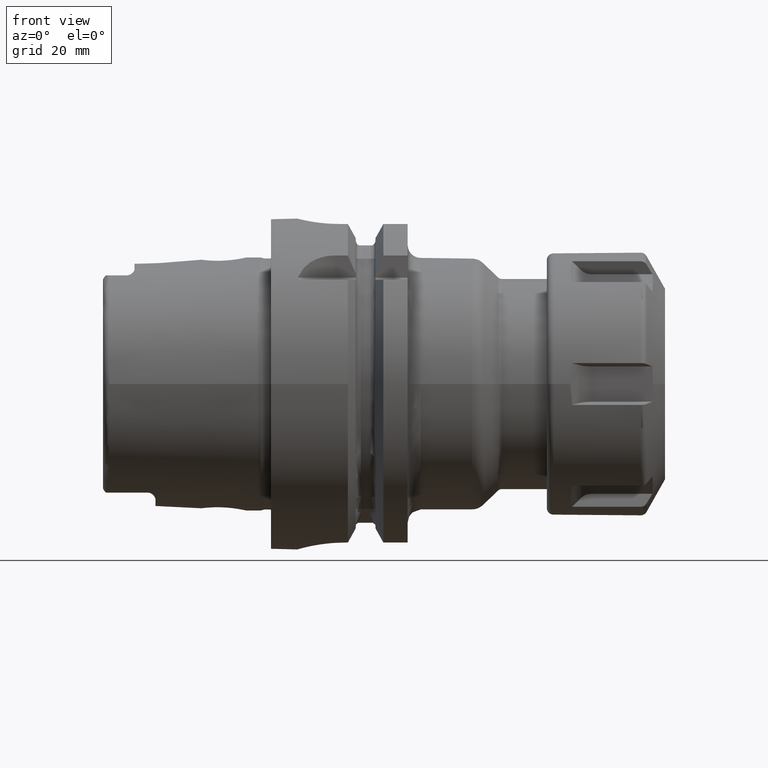
[diagram: clean part render]
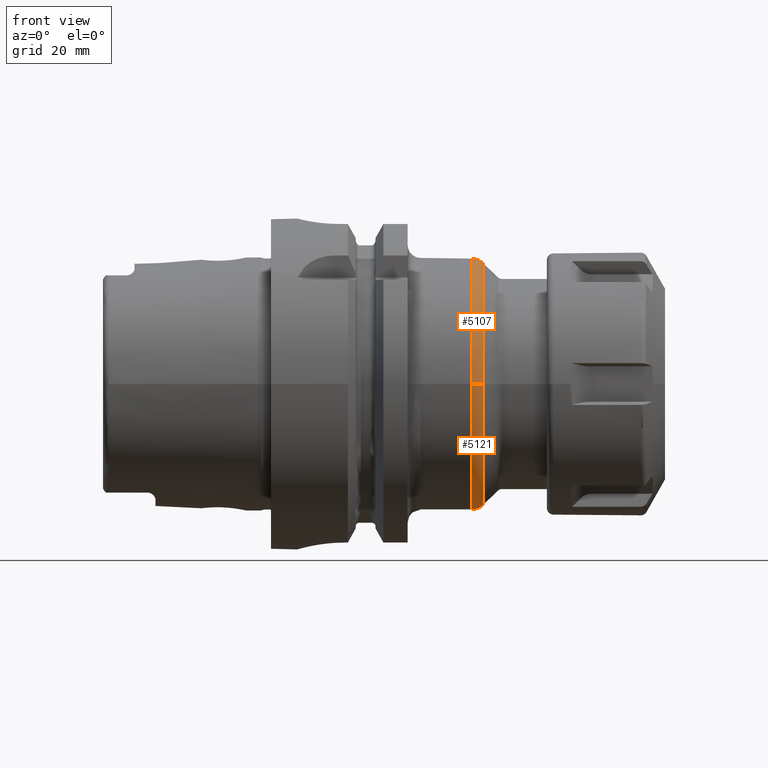
[diagram: same view with one multi-face feature highlighted, each face labeled with its STEP entity id]
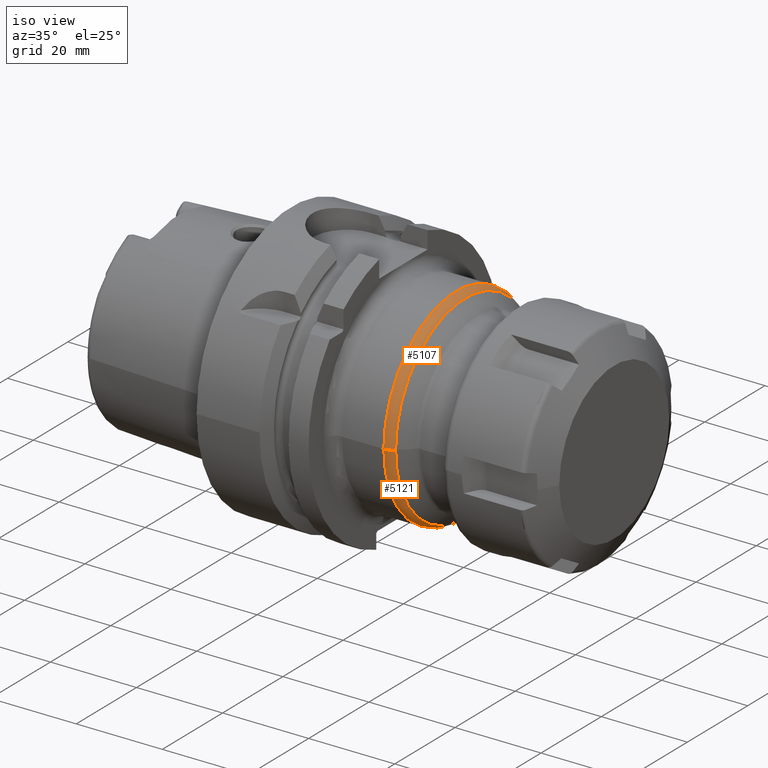
[diagram: same view with one multi-face feature highlighted, each face labeled with its STEP entity id]
A machine part, front view. The highlighted faces form ONE feature: a constant-radius fillet chain: 2 tangent blend faces with common blend radius 3 mm. The faces share edges in the B-rep.
A second angle (iso view) of the same feature is appended — it is thin or edge-on in the first view.
Their STEP definitions:
[1] entity #5107 (Torus):
#1824=CARTESIAN_POINT('',(3.825735931288E1,0.E0,0.E0));
#1825=DIRECTION('',(-1.E0,0.E0,0.E0));
#1826=DIRECTION('',(0.E0,-1.E0,0.E0));
#1827=AXIS2_PLACEMENT_3D('',#1824,#1825,#1826);
#1839=CARTESIAN_POINT('',(3.825735931288E1,-2.1E1,-4.103231643349E-12));
#1840=DIRECTION('',(0.E0,-1.953918797593E-13,1.E0));
#1841=DIRECTION('',(0.E0,-1.E0,-1.953918797593E-13));
#1842=AXIS2_PLACEMENT_3D('',#1839,#1840,#1841);
#1844=CARTESIAN_POINT('',(3.825735931288E1,2.1E1,4.105951689759E-12));
#1845=DIRECTION('',(0.E0,1.955215503391E-13,-1.E0));
#1846=DIRECTION('',(0.E0,1.E0,1.955215503391E-13));
#1847=AXIS2_PLACEMENT_3D('',#1844,#1845,#1846);
#1880=CARTESIAN_POINT('',(4.037867965644E1,0.E0,0.E0));
#1881=DIRECTION('',(-1.E0,0.E0,0.E0));
#1882=DIRECTION('',(0.E0,-1.E0,0.E0));
#1883=AXIS2_PLACEMENT_3D('',#1880,#1881,#1882);
#3179=CARTESIAN_POINT('',(3.825735931288E1,2.4E1,0.E0));
#3180=CARTESIAN_POINT('',(3.825735931288E1,-2.4E1,0.E0));
#3181=VERTEX_POINT('',#3179);
#3182=VERTEX_POINT('',#3180);
#3183=CARTESIAN_POINT('',(4.037867965644E1,2.312132034356E1,0.E0));
#3184=CARTESIAN_POINT('',(4.037867965644E1,-2.312132034356E1,0.E0));
#3185=VERTEX_POINT('',#3183);
#3186=VERTEX_POINT('',#3184);
#5093=CARTESIAN_POINT('',(3.825735931288E1,0.E0,0.E0));
#5094=DIRECTION('',(1.E0,0.E0,0.E0));
#5095=DIRECTION('',(0.E0,-9.999952560337E-1,-3.080245129131E-3));
#5096=AXIS2_PLACEMENT_3D('',#5093,#5094,#5095);
#5097=TOROIDAL_SURFACE('',#5096,2.1E1,3.E0);
#5098=ORIENTED_EDGE('',*,*,#5082,.T.);
#5100=ORIENTED_EDGE('',*,*,#5099,.T.);
#5102=ORIENTED_EDGE('',*,*,#5101,.F.);
#5104=ORIENTED_EDGE('',*,*,#5103,.F.);
#5105=EDGE_LOOP('',(#5098,#5100,#5102,#5104));
#5106=FACE_OUTER_BOUND('',#5105,.F.);
#5107=ADVANCED_FACE('',(#5106),#5097,.T.);
#1828=CIRCLE('',#1827,2.4E1);
#1843=CIRCLE('',#1842,3.E0);
#1848=CIRCLE('',#1847,3.E0);
#1884=CIRCLE('',#1883,2.312132034356E1);
#5082=EDGE_CURVE('',#3182,#3181,#1828,.T.);
#5099=EDGE_CURVE('',#3181,#3185,#1848,.T.);
#5101=EDGE_CURVE('',#3186,#3185,#1884,.T.);
#5103=EDGE_CURVE('',#3182,#3186,#1843,.T.);
[2] entity #5121 (Torus):
#1839=CARTESIAN_POINT('',(3.825735931288E1,-2.1E1,-4.103231643349E-12));
#1840=DIRECTION('',(0.E0,-1.953918797593E-13,1.E0));
#1841=DIRECTION('',(0.E0,-1.E0,-1.953918797593E-13));
#1842=AXIS2_PLACEMENT_3D('',#1839,#1840,#1841);
#1844=CARTESIAN_POINT('',(3.825735931288E1,2.1E1,4.105951689759E-12));
#1845=DIRECTION('',(0.E0,1.955215503391E-13,-1.E0));
#1846=DIRECTION('',(0.E0,1.E0,1.955215503391E-13));
#1847=AXIS2_PLACEMENT_3D('',#1844,#1845,#1846);
#1849=CARTESIAN_POINT('',(3.825735931288E1,0.E0,0.E0));
#1850=DIRECTION('',(-1.E0,0.E0,0.E0));
#1851=DIRECTION('',(0.E0,1.E0,0.E0));
#1852=AXIS2_PLACEMENT_3D('',#1849,#1850,#1851);
#1862=CARTESIAN_POINT('',(4.037867965644E1,0.E0,0.E0));
#1863=DIRECTION('',(-1.E0,0.E0,0.E0));
#1864=DIRECTION('',(0.E0,1.E0,0.E0));
#1865=AXIS2_PLACEMENT_3D('',#1862,#1863,#1864);
#3179=CARTESIAN_POINT('',(3.825735931288E1,2.4E1,0.E0));
#3180=CARTESIAN_POINT('',(3.825735931288E1,-2.4E1,0.E0));
#3181=VERTEX_POINT('',#3179);
#3182=VERTEX_POINT('',#3180);
#3183=CARTESIAN_POINT('',(4.037867965644E1,2.312132034356E1,0.E0));
#3184=CARTESIAN_POINT('',(4.037867965644E1,-2.312132034356E1,0.E0));
#3185=VERTEX_POINT('',#3183);
#3186=VERTEX_POINT('',#3184);
#5108=CARTESIAN_POINT('',(3.825735931288E1,0.E0,0.E0));
#5109=DIRECTION('',(1.E0,0.E0,0.E0));
#5110=DIRECTION('',(0.E0,9.999952560337E-1,3.080245129131E-3));
#5111=AXIS2_PLACEMENT_3D('',#5108,#5109,#5110);
#5112=TOROIDAL_SURFACE('',#5111,2.1E1,3.E0);
#5114=ORIENTED_EDGE('',*,*,#5113,.T.);
#5115=ORIENTED_EDGE('',*,*,#5103,.T.);
#5117=ORIENTED_EDGE('',*,*,#5116,.F.);
#5118=ORIENTED_EDGE('',*,*,#5099,.F.);
#5119=EDGE_LOOP('',(#5114,#5115,#5117,#5118));
#5120=FACE_OUTER_BOUND('',#5119,.F.);
#5121=ADVANCED_FACE('',(#5120),#5112,.T.);
#1843=CIRCLE('',#1842,3.E0);
#1848=CIRCLE('',#1847,3.E0);
#1853=CIRCLE('',#1852,2.4E1);
#1866=CIRCLE('',#1865,2.312132034356E1);
#5099=EDGE_CURVE('',#3181,#3185,#1848,.T.);
#5103=EDGE_CURVE('',#3182,#3186,#1843,.T.);
#5113=EDGE_CURVE('',#3181,#3182,#1853,.T.);
#5116=EDGE_CURVE('',#3185,#3186,#1866,.T.);